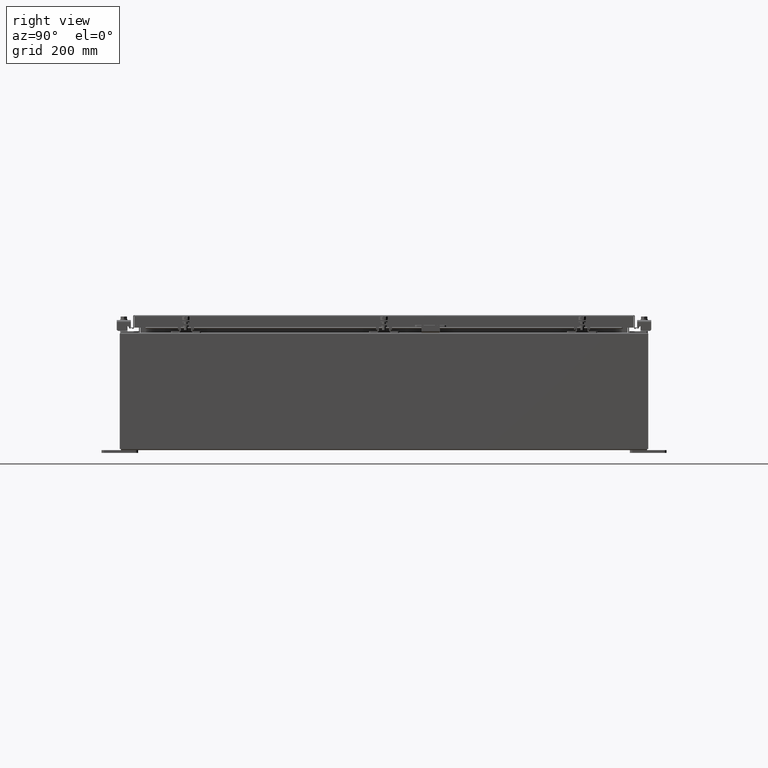
[diagram: clean part render]
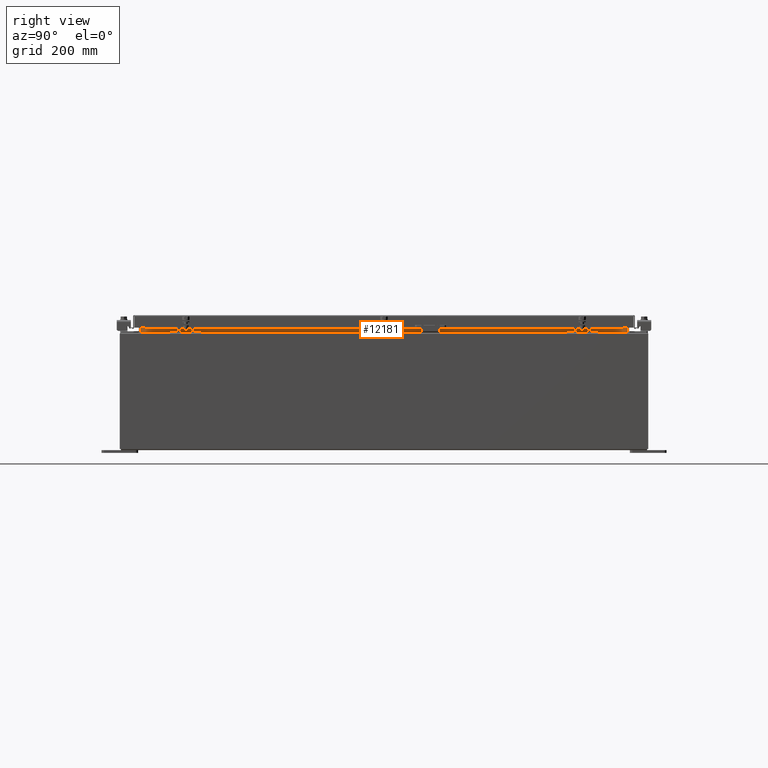
[diagram: same view with one face highlighted and labeled with its STEP entity id]
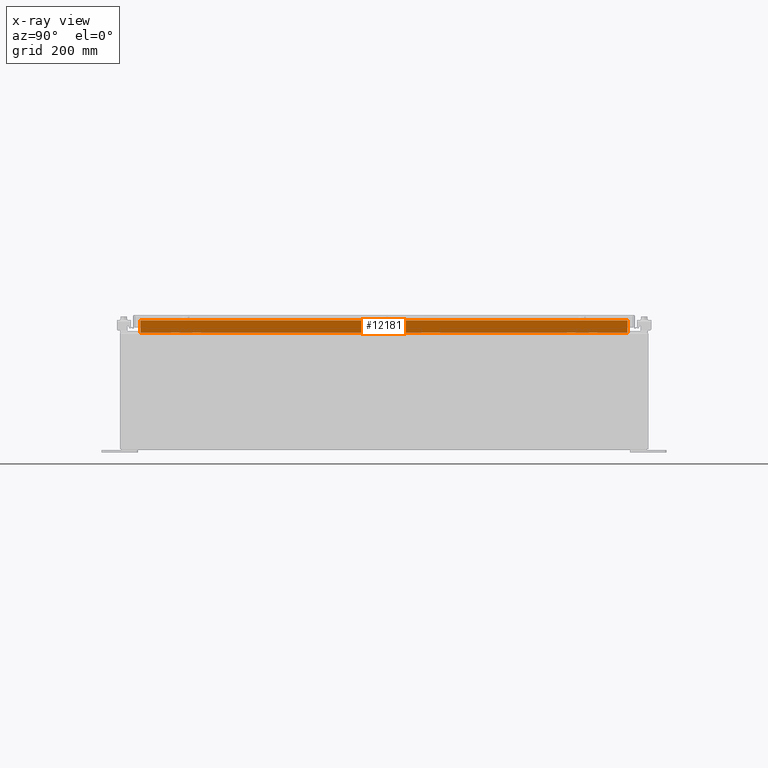
[diagram: x-ray of the same camera — body ghosted, the highlighted face saturated]
A machine part, right view. The second image highlights one B-rep face of the part: STEP entity #12181.
The next image is the same camera in x-ray: the body ghosted, the highlighted face saturated — about 0% of this face is hidden behind the body in this view.
In plain terms, the highlighted planar face has unit normal (1, 0, -0).
Its self-contained STEP definition (entity closure, byte-faithful):
#78 = CARTESIAN_POINT ( 'NONE',  ( 13.69970000000002800, 16.59375000000000000, 7.938300000000010600 ) ) ;
#776 = LINE ( 'NONE', #38293, #35184 ) ;
#916 = EDGE_LOOP ( 'NONE', ( #34542, #41848, #40798, #32849 ) ) ;
#4544 = CARTESIAN_POINT ( 'NONE',  ( 13.69970000000002800, 16.59375000000000000, 8.762900000000007200 ) ) ;
#10456 = LINE ( 'NONE', #34399, #27143 ) ;
#11649 = CARTESIAN_POINT ( 'NONE',  ( 13.69970000000000700, 0.0000000000000000000, -3.235750390904772800E-014 ) ) ;
#12181 = ADVANCED_FACE ( 'NONE', ( #12889 ), #31603, .T. ) ;
#12680 = CARTESIAN_POINT ( 'NONE',  ( 13.69970000000002800, -16.59375000000000000, 7.938300000000010600 ) ) ;
#12889 = FACE_OUTER_BOUND ( 'NONE', #916, .T. ) ;
#14133 = DIRECTION ( 'NONE',  ( -2.361913319930196000E-015, -0.0000000000000000000, -1.000000000000000000 ) ) ;
#14320 = VECTOR ( 'NONE', #33473, 39.37007874015748100 ) ;
#15010 = DIRECTION ( 'NONE',  ( 1.000000000000000000, 0.0000000000000000000, -2.361913319930196000E-015 ) ) ;
#18278 = CARTESIAN_POINT ( 'NONE',  ( 13.69970000000003000, -16.59375000000000000, 8.762900000000007200 ) ) ;
#19508 = AXIS2_PLACEMENT_3D ( 'NONE', #11649, #15010, #38351 ) ;
#23221 = LINE ( 'NONE', #27374, #30002 ) ;
#27143 = VECTOR ( 'NONE', #41148, 39.37007874015748100 ) ;
#27374 = CARTESIAN_POINT ( 'NONE',  ( 13.69970000000002800, 16.59375000000000000, 7.925300000000007100 ) ) ;
#28556 = VERTEX_POINT ( 'NONE', #4544 ) ;
#30002 = VECTOR ( 'NONE', #14133, 39.37007874015748100 ) ;
#31603 = PLANE ( 'NONE',  #19508 ) ;
#32066 = LINE ( 'NONE', #36823, #14320 ) ;
#32849 = ORIENTED_EDGE ( 'NONE', *, *, #35927, .F. ) ;
#33473 = DIRECTION ( 'NONE',  ( 2.361913319930201500E-015, -0.0000000000000000000, 1.000000000000000000 ) ) ;
#33528 = EDGE_CURVE ( 'NONE', #33534, #28556, #776, .T. ) ;
#33534 = VERTEX_POINT ( 'NONE', #18278 ) ;
#34391 = VERTEX_POINT ( 'NONE', #12680 ) ;
#34399 = CARTESIAN_POINT ( 'NONE',  ( 13.69970000000003000, 16.59375000000000000, 7.938300000000007900 ) ) ;
#34542 = ORIENTED_EDGE ( 'NONE', *, *, #39699, .F. ) ;
#35184 = VECTOR ( 'NONE', #41660, 39.37007874015748100 ) ;
#35927 = EDGE_CURVE ( 'NONE', #36919, #34391, #10456, .T. ) ;
#36823 = CARTESIAN_POINT ( 'NONE',  ( 13.69970000000003000, -16.59375000000000000, 8.850600000000007100 ) ) ;
#36919 = VERTEX_POINT ( 'NONE', #78 ) ;
#38293 = CARTESIAN_POINT ( 'NONE',  ( 13.69970000000002800, -16.59375000000000000, 8.762900000000007200 ) ) ;
#38351 = DIRECTION ( 'NONE',  ( -2.361913319930196000E-015, 0.0000000000000000000, -1.000000000000000000 ) ) ;
#39699 = EDGE_CURVE ( 'NONE', #28556, #36919, #23221, .T. ) ;
#40160 = EDGE_CURVE ( 'NONE', #34391, #33534, #32066, .T. ) ;
#40798 = ORIENTED_EDGE ( 'NONE', *, *, #40160, .F. ) ;
#41148 = DIRECTION ( 'NONE',  ( 6.585245634444928200E-017, -1.000000000000000000, 1.975573690333478700E-016 ) ) ;
#41660 = DIRECTION ( 'NONE',  ( 0.0000000000000000000, 1.000000000000000000, 0.0000000000000000000 ) ) ;
#41848 = ORIENTED_EDGE ( 'NONE', *, *, #33528, .F. ) ;